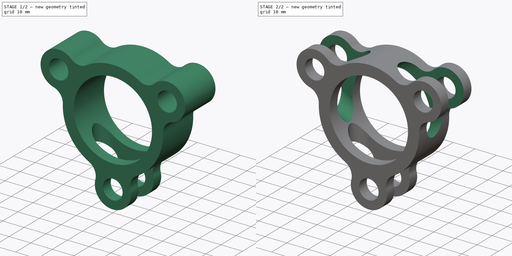
[diagram: build sequence overview — one tinted view per stage of 2, left to right]
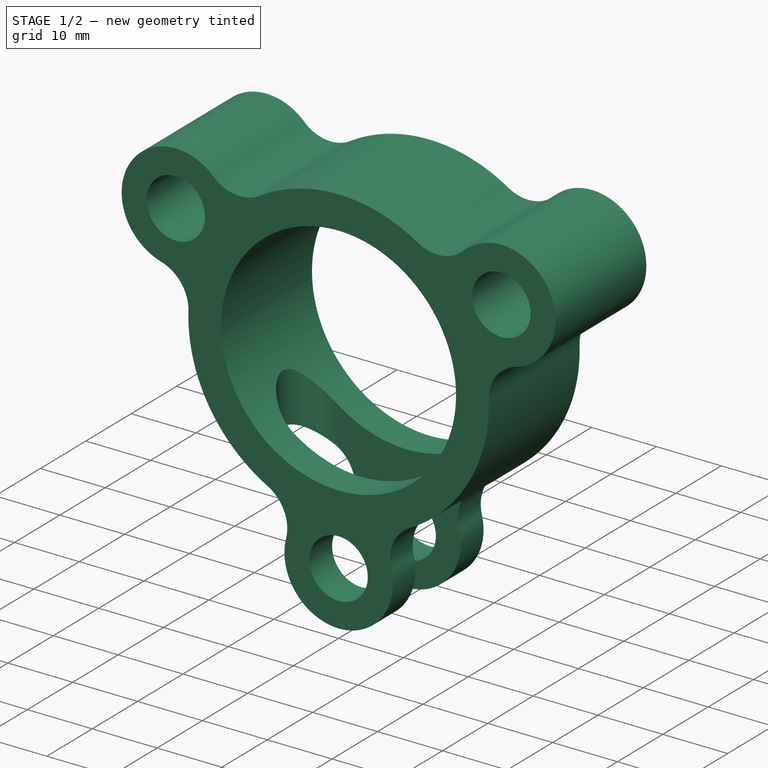
[diagram: stage 1 of 2 — iso view after this stage's code; geometry added in this stage tinted green]
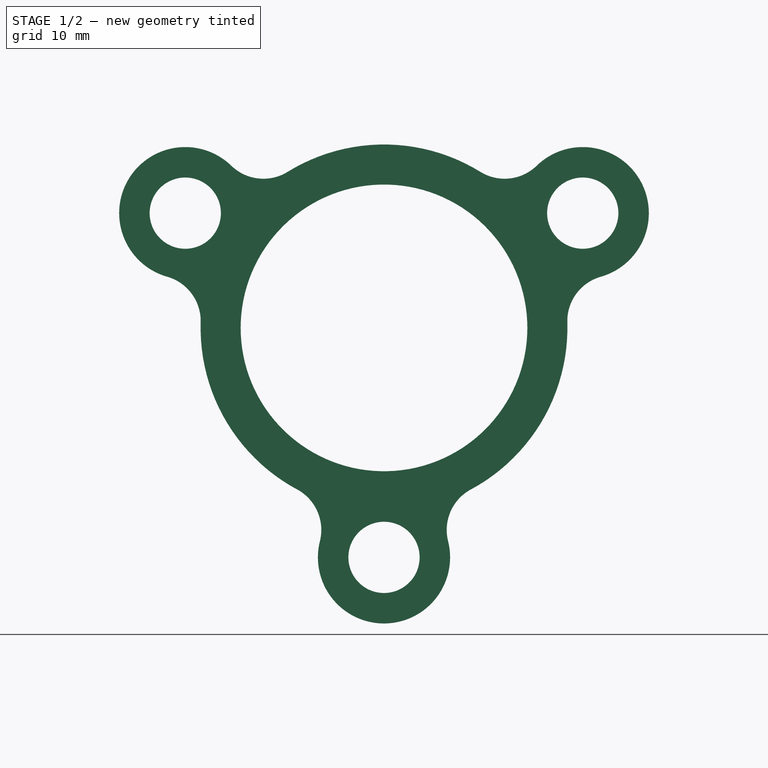
[diagram: stage 1 of 2 — front view after this stage's code; geometry added in this stage tinted green]
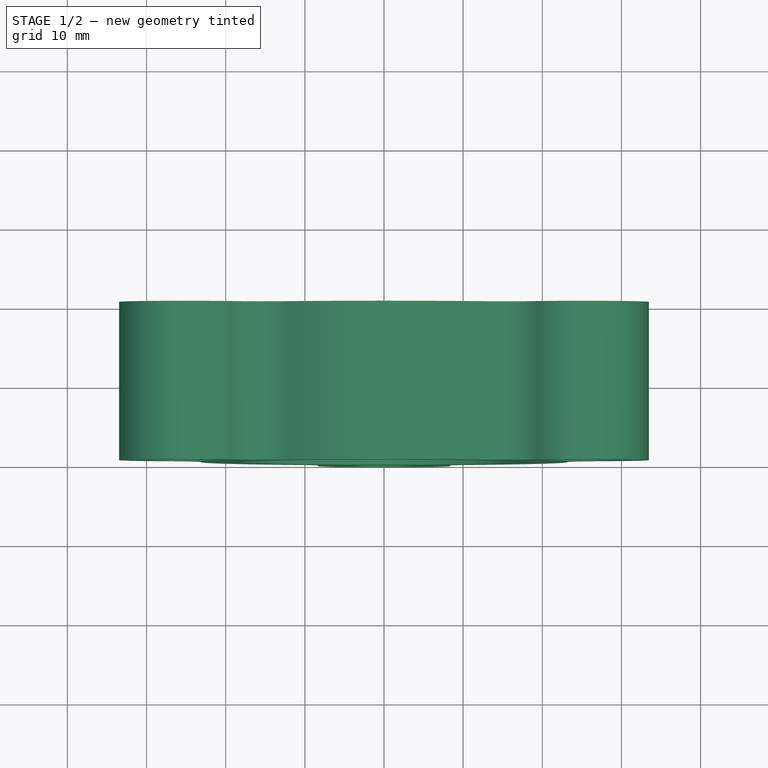
[diagram: stage 1 of 2 — top view after this stage's code; geometry added in this stage tinted green]
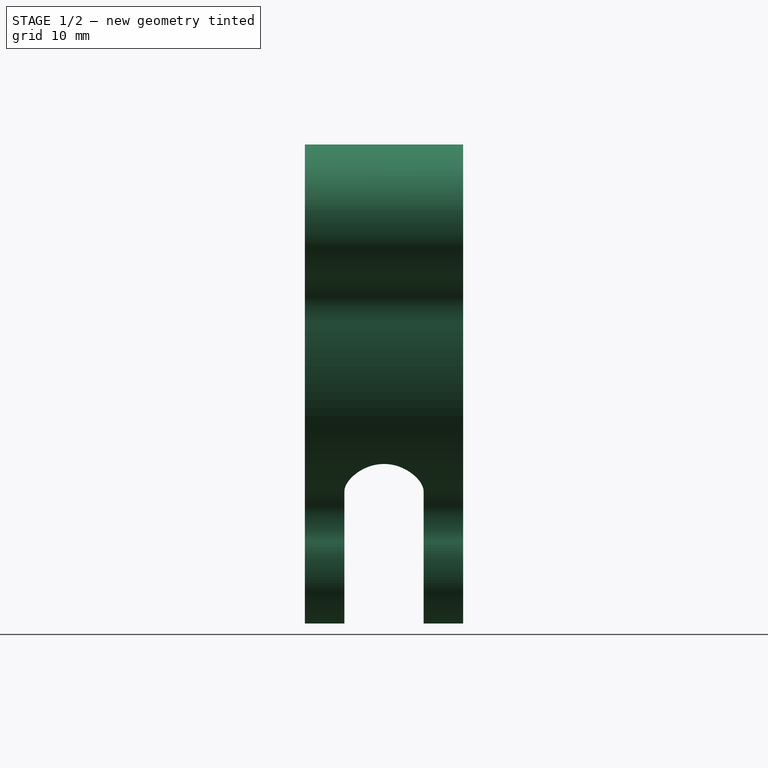
[diagram: stage 1 of 2 — right view after this stage's code; geometry added in this stage tinted green]
FCSTD DOCUMENT  (FreeCAD 0.21R33771 (Git))
Label: flanec2
License: All rights reserved
LicenseURL: http://en.wikipedia.org/wiki/All_rights_reserved
objects: Sketcher::SketchObject×2, PartDesign::Pad×1, PartDesign::Pocket×1, PartDesign::PolarPattern×1, PartDesign::Body×1
note: 8 computed .brp shape members not serialized (recipe doc carries the construction recipe); baked Part::Feature solids carry a one-line shape summary decoded from their .brp

FEATURE [Sketcher::SketchObject] Sketch
  FullyConstrained = false
  MapMode = 5
  Placement = pos=(0,0,0) rot=(1,0,0;1.5708rad)
  Support = -> [XZ_Plane]
  sketch-geometry (20):
    g0: ArcOfCircle CenterX=0 CenterY=0 CenterZ=0 NormalX=0 NormalY=0 NormalZ=1 AngleXU=0 Radius=23.1721 StartAngle=1.01743 EndAngle=2.12416
    g1: LineSegment StartX=25.1095 StartY=14.497 StartZ=0 EndX=-25.1095 EndY=14.497 EndZ=0
    g2: LineSegment StartX=-25.1095 StartY=14.497 StartZ=0 EndX=-3.6e-15 EndY=-28.9939 EndZ=0
    g3: LineSegment StartX=-3.6e-15 StartY=-28.9939 StartZ=0 EndX=25.1095 EndY=14.497 EndZ=0
    g4: Circle CenterX=0 CenterY=0 CenterZ=0 NormalX=0 NormalY=0 NormalZ=1 AngleXU=0 Radius=28.9939
    g5: ArcOfCircle CenterX=25.1095 CenterY=14.497 CenterZ=0 NormalX=0 NormalY=0 NormalZ=1 AngleXU=0 Radius=8.3514 StartAngle=4.98907 EndAngle=8.6245
    g6: ArcOfCircle CenterX=15.2378 CenterY=24.667 CenterZ=0 NormalX=0 NormalY=0 NormalZ=1 AngleXU=0 Radius=5.8218 StartAngle=4.15903 EndAngle=5.48291
    g7: ArcOfCircle CenterX=-15.2378 CenterY=24.667 CenterZ=0 NormalX=0 NormalY=0 NormalZ=1 AngleXU=0 Radius=5.8218 StartAngle=3.94187 EndAngle=5.26575
    g8: ArcOfCircle CenterX=28.9811 CenterY=0.862808 CenterZ=0 NormalX=0 NormalY=0 NormalZ=1 AngleXU=0 Radius=5.8218 StartAngle=1.84748 EndAngle=3.17136
    g9: ArcOfCircle CenterX=-28.9811 CenterY=0.862808 CenterZ=0 NormalX=0 NormalY=0 NormalZ=1 AngleXU=0 Radius=5.8218 StartAngle=6.25342 EndAngle=7.5773
    g10: ArcOfCircle CenterX=-13.7433 CenterY=-25.5298 CenterZ=0 NormalX=0 NormalY=0 NormalZ=1 AngleXU=0 Radius=5.8218 StartAngle=6.03627 EndAngle=7.36015
    g11: ArcOfCircle CenterX=13.7433 CenterY=-25.5298 CenterZ=0 NormalX=0 NormalY=0 NormalZ=1 AngleXU=0 Radius=5.8218 StartAngle=2.06463 EndAngle=3.38851
    g12: ArcOfCircle CenterX=0 CenterY=0 CenterZ=0 NormalX=0 NormalY=0 NormalZ=1 AngleXU=0 Radius=23.1721 StartAngle=5.20623 EndAngle=6.31295
    g13: ArcOfCircle CenterX=7.72732e-07 CenterY=-28.9939 CenterZ=0 NormalX=0 NormalY=0 NormalZ=1 AngleXU=0 Radius=8.3514 StartAngle=2.89468 EndAngle=6.5301
    g14: ArcOfCircle CenterX=0 CenterY=0 CenterZ=0 NormalX=0 NormalY=0 NormalZ=1 AngleXU=0 Radius=23.1721 StartAngle=3.11183 EndAngle=4.21855
    g15: ArcOfCircle CenterX=-25.1095 CenterY=14.497 CenterZ=0 NormalX=0 NormalY=0 NormalZ=1 AngleXU=0 Radius=8.3514 StartAngle=0.800279 EndAngle=4.43571
    g16: Circle CenterX=-25.1095 CenterY=14.497 CenterZ=0 NormalX=0 NormalY=0 NormalZ=1 AngleXU=0 Radius=4.5
    g17: Circle CenterX=25.1095 CenterY=14.497 CenterZ=0 NormalX=0 NormalY=0 NormalZ=1 AngleXU=0 Radius=4.5
    g18: Circle CenterX=7.72732e-07 CenterY=-28.9939 CenterZ=0 NormalX=0 NormalY=0 NormalZ=1 AngleXU=0 Radius=4.5
    g19: Circle CenterX=0 CenterY=0 CenterZ=0 NormalX=0 NormalY=0 NormalZ=1 AngleXU=0 Radius=18.1107
  constraints (41):
    c: Coincident(g0,g-1)
    c: Coincident(g1,g2)
    c: Coincident(g2,g3)
    c: Coincident(g3,g1)
    c: Equal(g1,g2)
    c: Equal(g1,g3)
    c: PointOnObject(g1,g4)
    c: PointOnObject(g2,g4)
    c: PointOnObject(g3,g4)
    c: Coincident(g4,g0)
    c: Horizontal(g1)
    c: Coincident(g5,g1)
    c: PointOnObject(g6,g4)
    c: PointOnObject(g7,g4)
    c: PointOnObject(g8,g4)
    c: PointOnObject(g9,g4)
    c: PointOnObject(g10,g4)
    c: PointOnObject(g11,g4)
    c: Tangent(g0,g6) = 1.5708
    c: Coincident(g8,g12) = 1.5708
    c: Tangent(g8,g5) = 1.5708
    c: Tangent(g6,g5) = 1.5708
    c: Coincident(g13,g11) = 1.5708
    c: Equal(g0,g12)
    c: Tangent(g12,g11) = 1.5708
    c: Coincident(g0,g12)
    c: Coincident(g10,g14) = 1.5708
    c: Coincident(g10,g13)
    c: Equal(g0,g14)
    c: Tangent(g14,g9) = 1.5708
    c: Coincident(g0,g14)
    c: Coincident(g9,g15) = 1.5708
    c: Tangent(g0,g7) = 1.5708
    c: Tangent(g15,g7) = 1.5708
    c: Coincident(g16,g15)
    c: Coincident(g17,g5)
    c: Coincident(g18,g13)
    c: Radius(g16) = 4.5
    c: Equal(g16,g18)
    c: Equal(g17,g16)
    c: Coincident(g19,g0)
FEATURE [PartDesign::Pad] Pad
  Direction = (0,-1,2e-16)
  Length = 20
  Length2 = 10
  Placement = pos=(0,0,0) rot=(1,0,0;1.5708rad)
  Profile = -> Sketch
  ReferenceAxis = -> Sketch [N_Axis]
  Refine = true
  Type = 0
FEATURE [Sketcher::SketchObject] Sketch001
  FullyConstrained = false
  MapMode = 5
  Support = -> [XY_Plane]
  sketch-geometry (5):
    g0: ArcOfCircle CenterX=-10.5349 CenterY=-10 CenterZ=0 NormalX=0 NormalY=0 NormalZ=1 AngleXU=0 Radius=5 StartAngle=1.5708 EndAngle=4.71239
    g1: ArcOfCircle CenterX=10.5349 CenterY=-10 CenterZ=0 NormalX=0 NormalY=0 NormalZ=1 AngleXU=0 Radius=5 StartAngle=4.71239 EndAngle=7.85398
    g2: LineSegment StartX=-10.5349 StartY=-15 StartZ=0 EndX=10.5349 EndY=-15 EndZ=0
    g3: LineSegment StartX=10.5349 StartY=-5 StartZ=0 EndX=-10.5349 EndY=-5 EndZ=0
    g4: LineSegment StartX=-10.5349 StartY=-10 StartZ=0 EndX=10.5349 EndY=-10 EndZ=0
  constraints (10):
    c: Tangent(g0,g2) = -1.5708
    c: Tangent(g2,g1) = -1.5708
    c: Tangent(g1,g3) = -1.5708
    c: Tangent(g3,g0) = -1.5708
    c: Equal(g0,g1)
    c: Coincident(g4,g0)
    c: Coincident(g4,g1)
    c: Symmetric(g0,g1,g-2)
    c: DistanceY(g1,g1) = 10
    c: DistanceY(g1,g-1) = 10
FEATURE [PartDesign::Pocket] Pocket
  BaseFeature = -> Pad
  Direction = (0,0,-1)
  Length = 60
  Length2 = 5
  Placement = pos=(0,0,0) rot=(1,0,0;1.5708rad)
  Profile = -> Sketch001
  ReferenceAxis = -> Sketch001 [N_Axis]
  Refine = true
  Type = 0
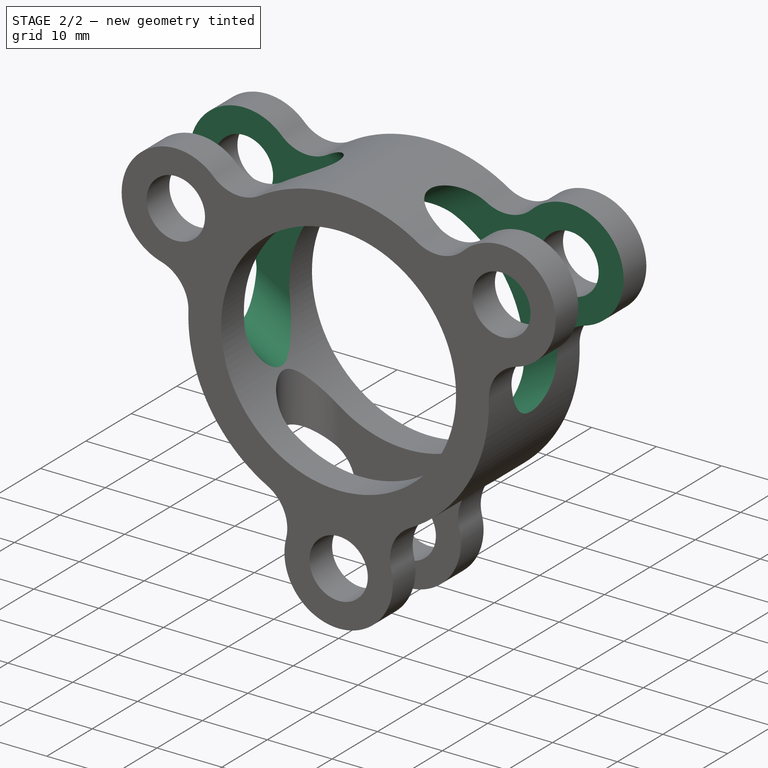
[diagram: stage 2 of 2 — iso view after this stage's code; geometry added in this stage tinted green]
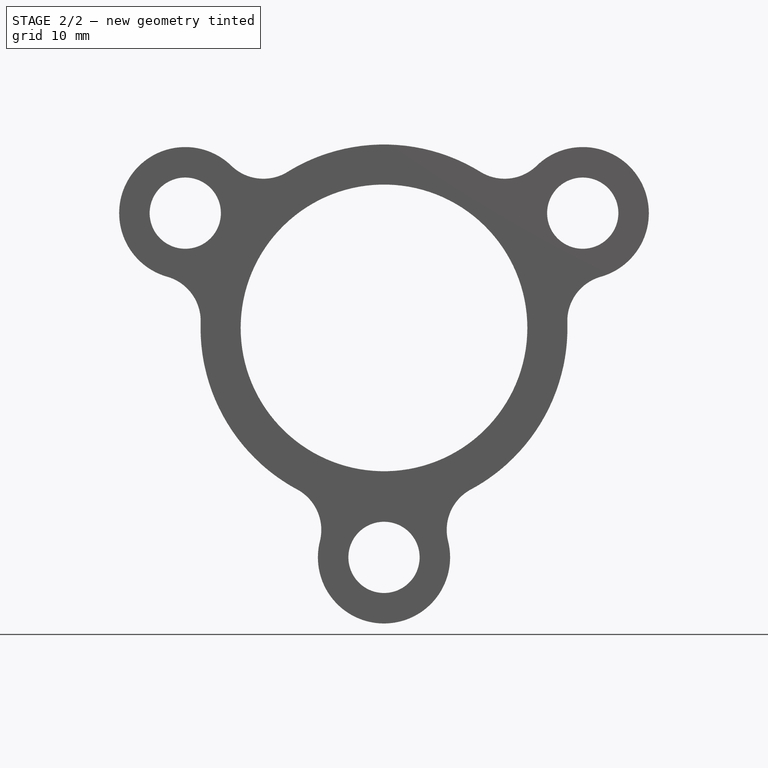
[diagram: stage 2 of 2 — front view after this stage's code; geometry added in this stage tinted green]
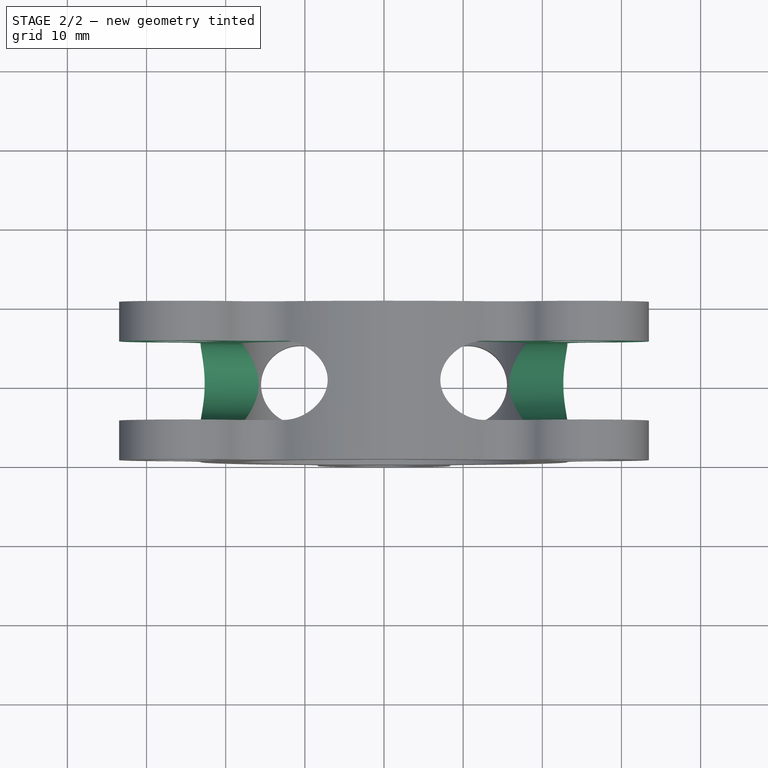
[diagram: stage 2 of 2 — top view after this stage's code; geometry added in this stage tinted green]
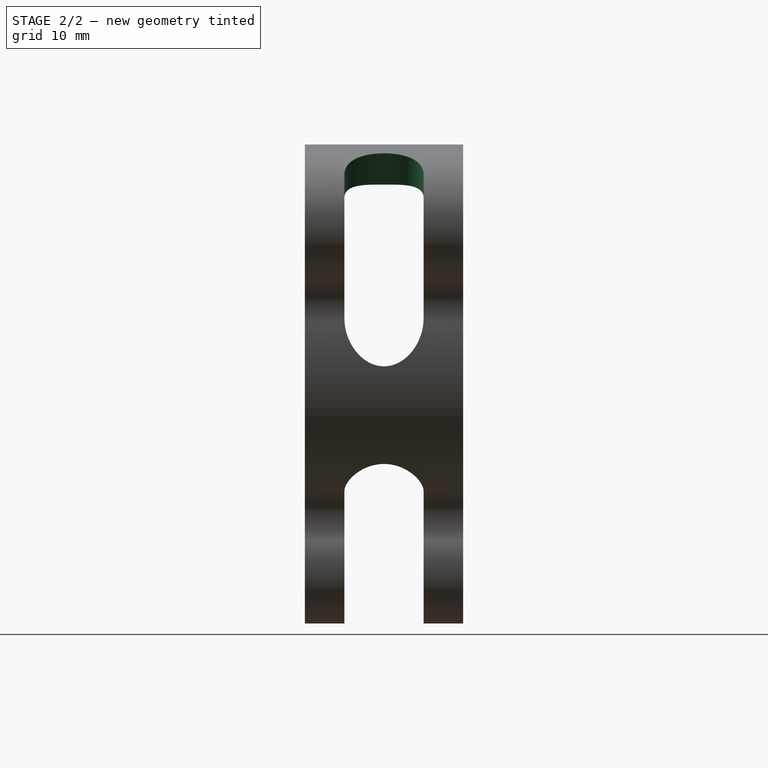
[diagram: stage 2 of 2 — right view after this stage's code; geometry added in this stage tinted green]
FEATURE [PartDesign::PolarPattern] PolarPattern
  Angle = 360
  Axis = -> Y_Axis
  BaseFeature = -> Pocket
  Occurrences = 3
  Originals = -> [Pocket]
  Placement = pos=(0,0,0) rot=(1,0,0;1.5708rad)
  Refine = true
FEATURE [PartDesign::Body] Body
  Group = -> [Sketch,Pad,Sketch001,Pocket,PolarPattern]
  Origin = -> Origin
  Tip = -> PolarPattern
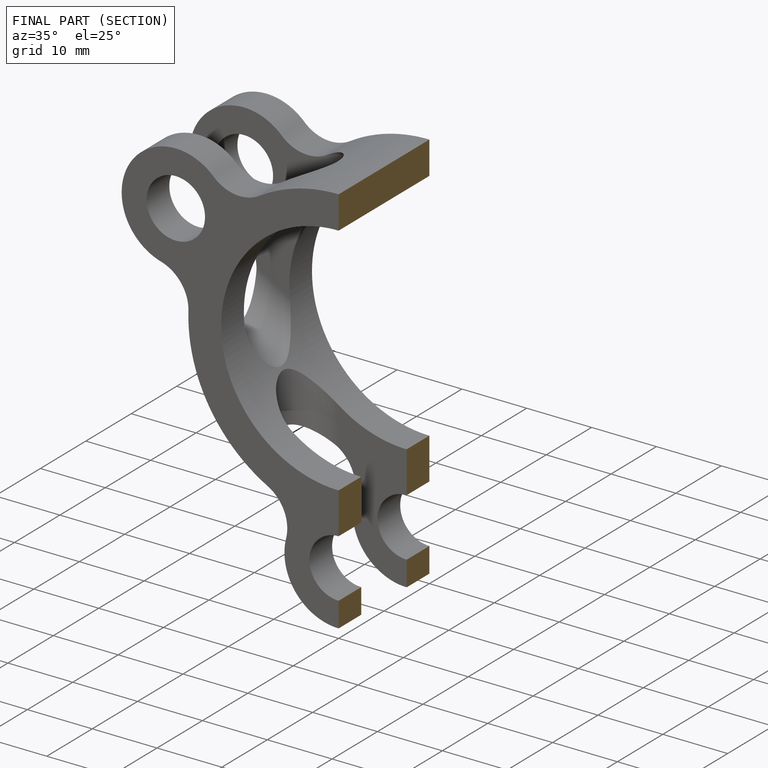
[diagram: finished part — half-section view (interior)]
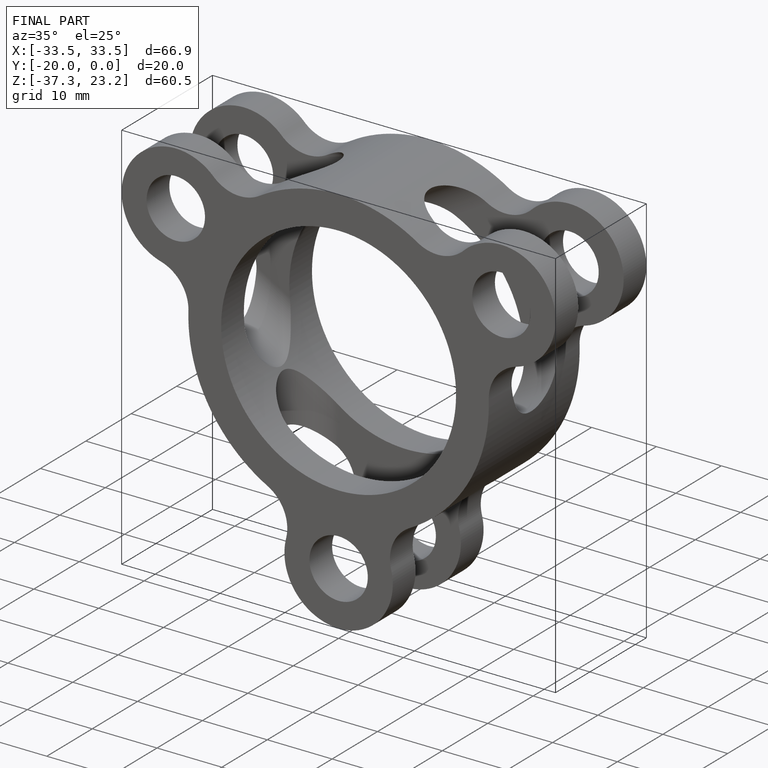
[diagram: finished part — iso view with bounding-box wireframe]
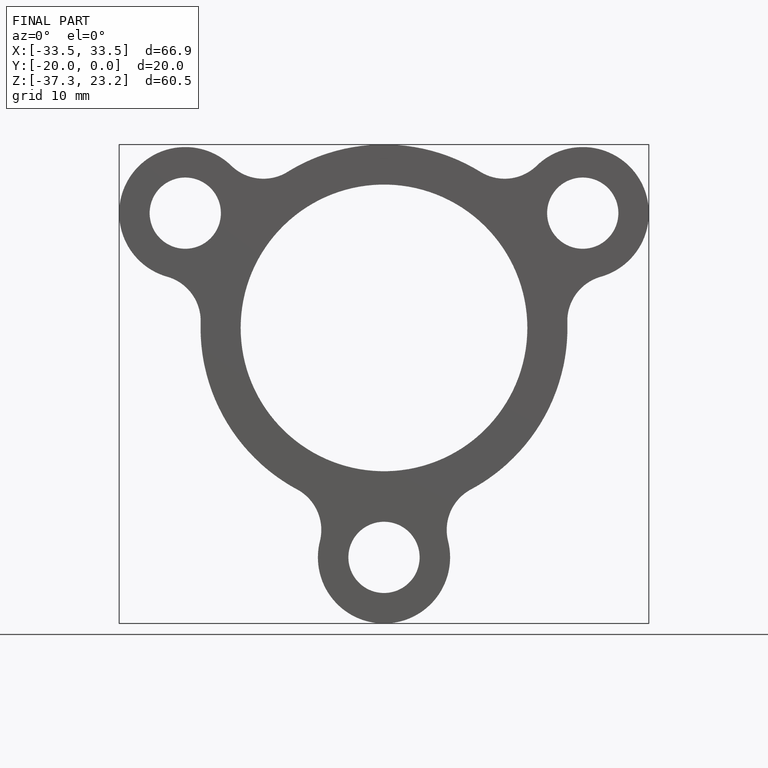
[diagram: finished part — front view with bounding-box wireframe]
